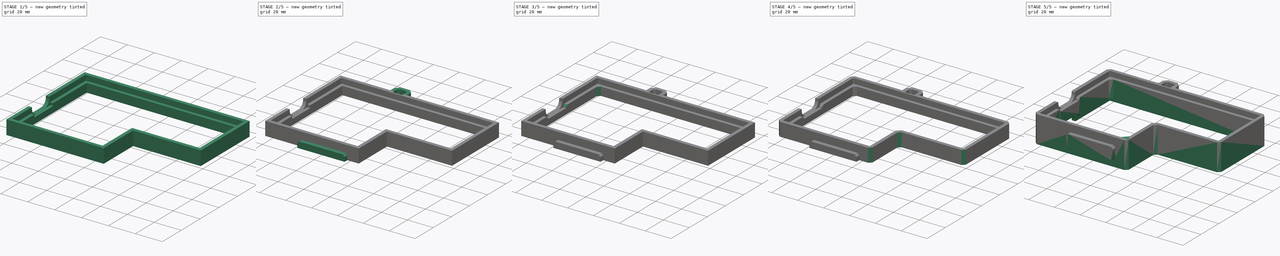
[diagram: build sequence overview — one tinted view per stage of 5, left to right]
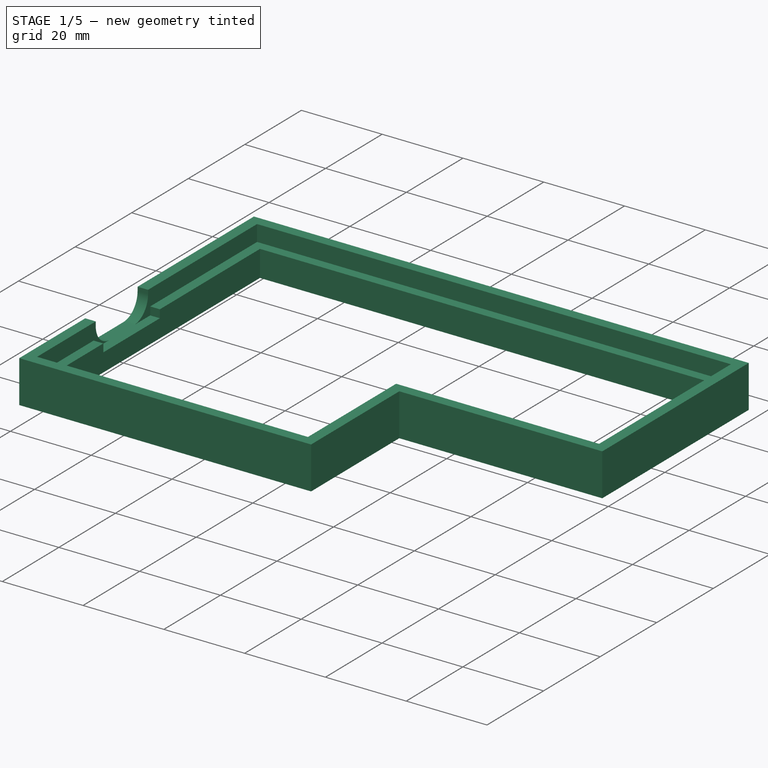
[diagram: stage 1 of 5 — iso view after this stage's code; geometry added in this stage tinted green]
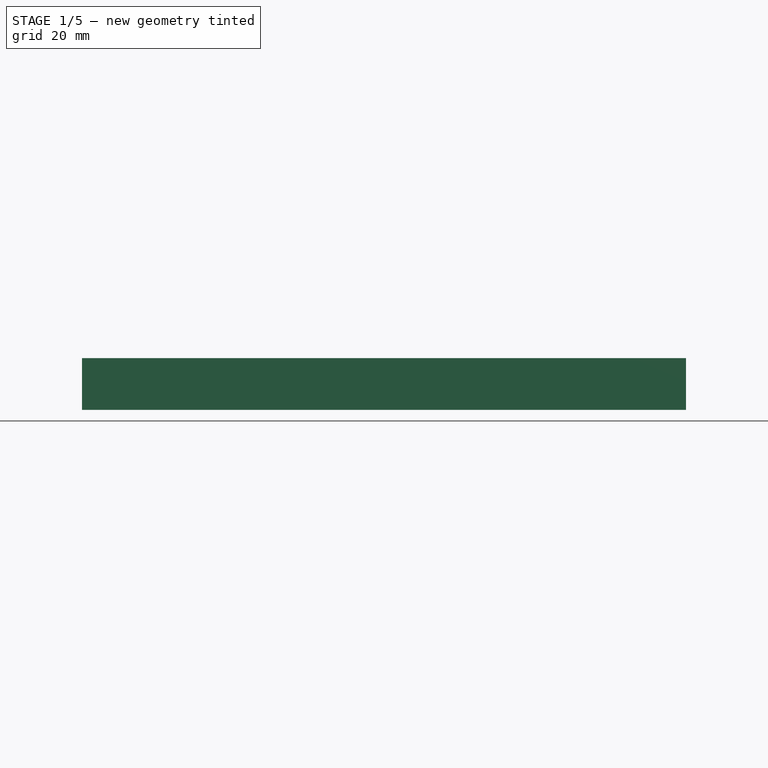
[diagram: stage 1 of 5 — front view after this stage's code; geometry added in this stage tinted green]
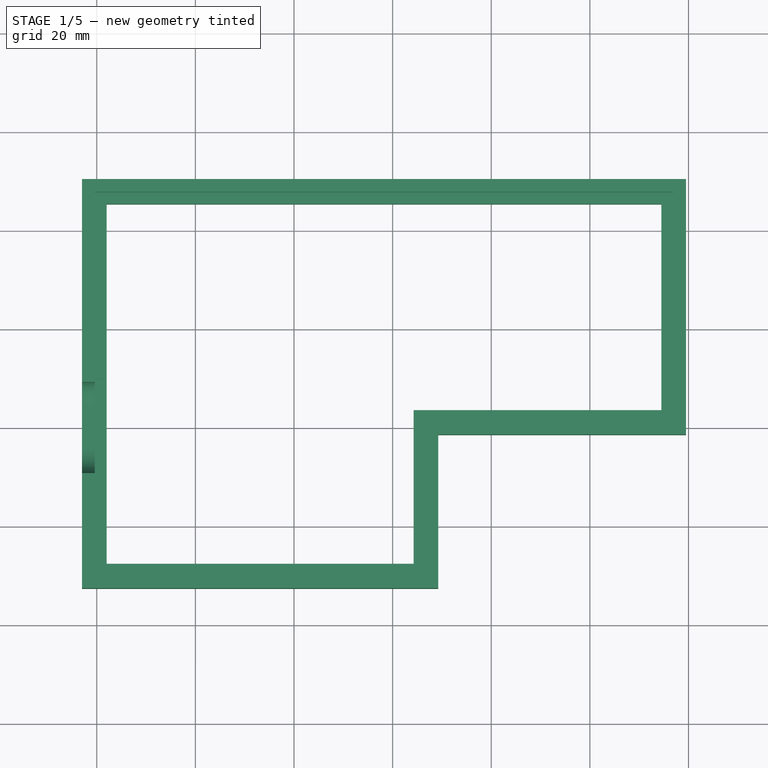
[diagram: stage 1 of 5 — top view after this stage's code; geometry added in this stage tinted green]
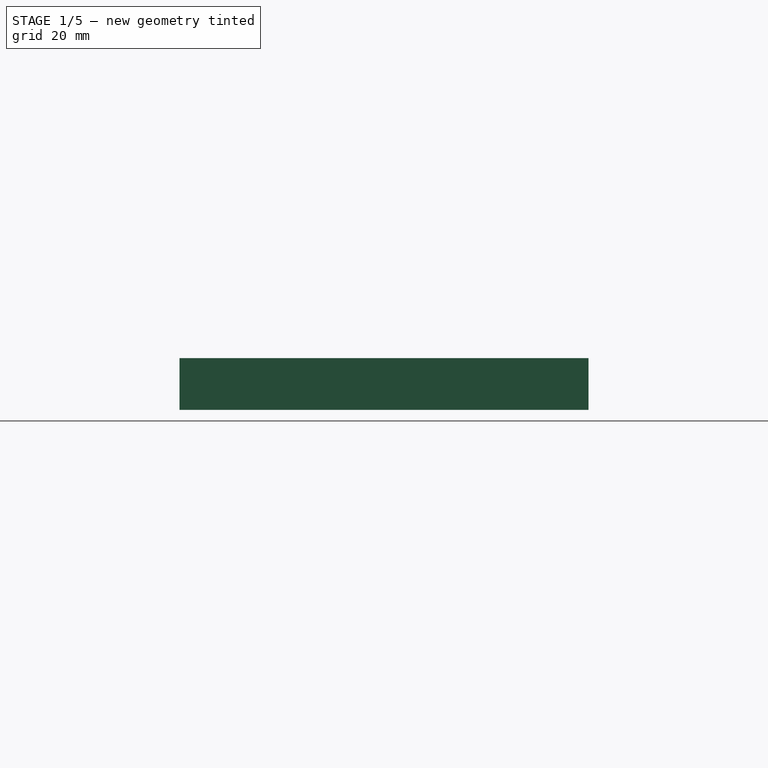
[diagram: stage 1 of 5 — right view after this stage's code; geometry added in this stage tinted green]
FCSTD DOCUMENT  (FreeCAD 1.0R39319 (Git))
Label: holder-v2
License: All rights reserved
LicenseURL: https://en.wikipedia.org/wiki/All_rights_reserved
objects: PartDesign::Chamfer×12, Sketcher::SketchObject×7, PartDesign::Pad×3, PartDesign::Pocket×3, PartDesign::Body×1, PartDesign::Mirrored×1
note: 71 computed .brp shape members not serialized (recipe doc carries the construction recipe); baked Part::Feature solids carry a one-line shape summary decoded from their .brp

FEATURE [Sketcher::SketchObject] Sketch
  ArcFitTolerance = 1e-06
  AttachmentSupport = -> [XZ_Plane]
  FullyConstrained = true
  MakeInternals = false
  MapMode = 5
  Placement = pos=(0,0,0) rot=(1,0,0;1.5708rad)
  sketch-geometry (14):
    g0: LineSegment StartX=1.9 StartY=-6.5 StartZ=0 EndX=1.9 EndY=-10.5 EndZ=0
    g1: LineSegment StartX=1.9 StartY=-10.5 StartZ=0 EndX=3.1 EndY=-10.5 EndZ=0
    g2: LineSegment StartX=3.1 StartY=-10.5 StartZ=0 EndX=3.1 EndY=10.5 EndZ=0
    g3: LineSegment StartX=3.1 StartY=10.5 StartZ=0 EndX=1.9 EndY=10.5 EndZ=0
    g4: LineSegment StartX=1.9 StartY=10.5 StartZ=0 EndX=1.9 EndY=6.5 EndZ=0
    g5: LineSegment StartX=1.9 StartY=6.5 StartZ=0 EndX=0 EndY=6.5 EndZ=0
    g6: LineSegment StartX=-3 StartY=10.5 StartZ=0 EndX=-3 EndY=-10.5 EndZ=0
    g7: LineSegment StartX=-0.4 StartY=-6.5 StartZ=0 EndX=-0.4 EndY=-10.5 EndZ=0
    g8: LineSegment StartX=-0.4 StartY=-10.5 StartZ=0 EndX=-3 EndY=-10.5 EndZ=0
    g9: LineSegment StartX=0 StartY=6.5 StartZ=0 EndX=-0.4 EndY=6.5 EndZ=0
    g10: LineSegment StartX=-0.4 StartY=6.5 StartZ=0 EndX=-0.4 EndY=10.5 EndZ=0
    g11: LineSegment StartX=-0.4 StartY=10.5 StartZ=0 EndX=-3 EndY=10.5 EndZ=0
    g12: LineSegment StartX=-0.4 StartY=-6.5 StartZ=0 EndX=0 EndY=-6.5 EndZ=0
    g13: LineSegment StartX=0 StartY=-6.5 StartZ=0 EndX=1.9 EndY=-6.5 EndZ=0
  constraints (40):
    c: Vertical(g0)
    c: Coincident(g0,g1)
    c: Horizontal(g1)
    c: Coincident(g1,g2)
    c: Vertical(g2)
    c: Coincident(g2,g3)
    c: Horizontal(g3)
    c: Coincident(g3,g4)
    c: Vertical(g4)
    c: Coincident(g4,g5)
    c: PointOnObject(g5,g-2)
    c: Horizontal(g5)
    c: Vertical(g6)
    c: DistanceX(g1,g1) = 1.2
    c: Vertical(g7)
    c: Coincident(g7,g8)
    c: Coincident(g8,g6)
    c: Coincident(g5,g9)
    c: Horizontal(g9)
    c: Coincident(g9,g10)
    c: Vertical(g10)
    c: Coincident(g10,g11)
    c: Coincident(g11,g6)
    c: Tangent(g11,g3)
    c: Tangent(g8,g1)
    c: Equal(g10,g7)
    c: Coincident(g7,g12)
    c: Horizontal(g12)
    c: Coincident(g12,g13)
    c: Coincident(g13,g0)
    c: Horizontal(g13)
    c: Distance(g12,g12) = 0.4
    c: Distance(g13,g13) = 1.9
    c: PointOnObject(g12,g-2)
    c: Distance(g-1,g5) = 6.5
    c: Distance(g13,g5) = 13
    c: Distance(g0,g0) = 4
    c: Equal(g9,g12)
    c: Equal(g5,g13)
    c: DistanceX(g8,g8) = 2.6
FEATURE [Sketcher::SketchObject] Sketch001
  ArcFitTolerance = 1e-06
  AttachmentSupport = -> [XY_Plane]
  FullyConstrained = true
  MakeInternals = false
  MapMode = 5
  expr: Constraints[33] = .Constraints.ext
  expr: Constraints[34] = .Constraints.ext
  expr: Constraints[35] = .Constraints.ext
  expr: Constraints[36] = .Constraints.ext
  expr: Constraints[37] = .Constraints.ext
  expr: Constraints[51] = .Constraints.int
  expr: Constraints[52] = .Constraints.int
  expr: Constraints[53] = .Constraints.int
  expr: Constraints[54] = .Constraints.int
  expr: Constraints[55] = .Constraints.int
  sketch-geometry (19):
    g0: LineSegment [constr] StartX=0 StartY=0 StartZ=0 EndX=0 EndY=47.38 EndZ=0
    g1: LineSegment [constr] StartX=0 StartY=47.38 StartZ=0 EndX=116.5 EndY=47.38 EndZ=0
    g2: LineSegment [constr] StartX=116.5 StartY=47.38 StartZ=0 EndX=116.5 EndY=1.59 EndZ=0
    g3: LineSegment [constr] StartX=116.5 StartY=1.59 StartZ=0 EndX=66.25 EndY=1.59 EndZ=0
    g4: LineSegment [constr] StartX=66.25 StartY=1.59 StartZ=0 EndX=66.25 EndY=-29.58 EndZ=0
    g5: LineSegment [constr] StartX=66.25 StartY=-29.58 StartZ=0 EndX=0 EndY=-29.58 EndZ=0
    g6: LineSegment [constr] StartX=0 StartY=-29.58 StartZ=0 EndX=0 EndY=0 EndZ=0
    g7: LineSegment StartX=-3 StartY=-32.58 StartZ=0 EndX=-3 EndY=50.38 EndZ=0
    g8: LineSegment StartX=-3 StartY=50.38 StartZ=0 EndX=119.5 EndY=50.38 EndZ=0
    g9: LineSegment StartX=119.5 StartY=50.38 StartZ=0 EndX=119.5 EndY=-1.41 EndZ=0
    g10: LineSegment StartX=119.5 StartY=-1.41 StartZ=0 EndX=69.25 EndY=-1.41 EndZ=0
    g11: LineSegment StartX=69.25 StartY=-1.41 StartZ=0 EndX=69.25 EndY=-32.58 EndZ=0
    g12: LineSegment StartX=69.25 StartY=-32.58 StartZ=0 EndX=-3 EndY=-32.58 EndZ=0
    g13: LineSegment StartX=2 StartY=-27.58 StartZ=0 EndX=2 EndY=45.38 EndZ=0
    g14: LineSegment StartX=2 StartY=45.38 StartZ=0 EndX=114.5 EndY=45.38 EndZ=0
    g15: LineSegment StartX=114.5 StartY=45.38 StartZ=0 EndX=114.5 EndY=3.59 EndZ=0
    g16: LineSegment StartX=114.5 StartY=3.59 StartZ=0 EndX=64.25 EndY=3.59 EndZ=0
    g17: LineSegment StartX=64.25 StartY=3.59 StartZ=0 EndX=64.25 EndY=-27.58 EndZ=0
    g18: LineSegment StartX=64.25 StartY=-27.58 StartZ=0 EndX=2 EndY=-27.58 EndZ=0
  constraints (56):
    c: Coincident(g-1,g0)
    c: PointOnObject(g0,g-2)
    c: Coincident(g0,g1)
    c: Horizontal(g1)
    c: Coincident(g1,g2)
    c: Vertical(g2)
    c: Coincident(g2,g3)
    c: Horizontal(g3)
    c: Coincident(g3,g4)
    c: Vertical(g4)
    c: Coincident(g4,g5)
    c: PointOnObject(g5,g-2)
    c: Horizontal(g5)
    c: Coincident(g5,g6)
    c: Coincident(g6,g0)
    c: Distance(g5,g1) = 76.96
    c: DistanceX(g1,g1) = 116.5
    c: DistanceY(g2,g2) = 45.79
    c: DistanceX(g5,g5) = 66.25
    c: Distance(g0,g1) = 47.38
    c: Vertical(g7)
    c: Coincident(g7,g8)
    c: Horizontal(g8)
    c: Coincident(g8,g9)
    c: Vertical(g9)
    c: Coincident(g9,g10)
    c: Horizontal(g10)
    c: Coincident(g10,g11)
    c: Vertical(g11)
    c: Coincident(g11,g12)
    c: Coincident(g12,g7)
    c: Horizontal(g12)
    c: Distance(g6,g7) = 3  'ext'
    c: Distance(g1,g8) = 3
    c: Distance(g2,g9) = 3
    c: Distance(g10,g3) = 3
    c: Distance(g11,g4) = 3
    c: Distance(g12,g5) = 3
    c: Vertical(g13)
    c: Coincident(g13,g14)
    c: Horizontal(g14)
    c: Coincident(g14,g15)
    c: Vertical(g15)
    c: Coincident(g15,g16)
    c: Horizontal(g16)
    c: Coincident(g16,g17)
    c: Vertical(g17)
    c: Coincident(g17,g18)
    c: Coincident(g18,g13)
    c: Horizontal(g18)
    c: Distance(g13,g0) = 2  'int'
    c: Distance(g14,g1) = 2
    c: Distance(g15,g2) = 2
    c: Distance(g16,g3) = 2
    c: Distance(g4,g17) = 2
    c: Distance(g5,g18) = 2
FEATURE [PartDesign::Pad] Pad
  Direction = (0,0,1)
  Length = 10.5
  Length2 = 10
  Profile = -> Sketch001
  ReferenceAxis = -> Sketch001 [N_Axis]
  Refine = true
  Suppressed = false
  Type = 0
FEATURE [Sketcher::SketchObject] Sketch002
  ArcFitTolerance = 1e-06
  AttachmentSupport = -> [Pad]
  ExternalGeometry = -> [Pad]
  FullyConstrained = true
  MakeInternals = false
  MapMode = 5
  Placement = pos=(0,0,10.5) rot=(0,0,1;0rad)
  expr: .Constraints.wallint = 0
  expr: Constraints[25] = .Constraints.wall
  expr: Constraints[26] = .Constraints.wallint
  expr: Constraints[27] = .Constraints.wall
  expr: Constraints[28] = .Constraints.wallint
  expr: Constraints[29] = .Constraints.wall
  expr: Constraints[30] = .Constraints.wallint
  expr: Constraints[31] = .Constraints.wall
  expr: Constraints[32] = .Constraints.wallint
  expr: Constraints[33] = .Constraints.wall
  expr: Constraints[34] = .Constraints.wallint
  sketch-geometry (12):
    g0: LineSegment StartX=-0.4 StartY=-29.98 StartZ=0 EndX=-0.4 EndY=47.78 EndZ=0
    g1: LineSegment StartX=-0.4 StartY=47.78 StartZ=0 EndX=116.9 EndY=47.78 EndZ=0
    g2: LineSegment StartX=116.9 StartY=47.78 StartZ=0 EndX=116.9 EndY=1.19 EndZ=0
    g3: LineSegment StartX=116.9 StartY=1.19 StartZ=0 EndX=66.65 EndY=1.19 EndZ=0
    g4: LineSegment StartX=66.65 StartY=1.19 StartZ=0 EndX=66.65 EndY=-29.98 EndZ=0
    g5: LineSegment StartX=66.65 StartY=-29.98 StartZ=0 EndX=-0.4 EndY=-29.98 EndZ=0
    g6: LineSegment StartX=2 StartY=45.38 StartZ=0 EndX=2 EndY=-27.58 EndZ=0
    g7: LineSegment StartX=2 StartY=-27.58 StartZ=0 EndX=64.25 EndY=-27.58 EndZ=0
    g8: LineSegment StartX=64.25 StartY=-27.58 StartZ=0 EndX=64.25 EndY=3.59 EndZ=0
    g9: LineSegment StartX=64.25 StartY=3.59 StartZ=0 EndX=114.5 EndY=3.59 EndZ=0
    g10: LineSegment StartX=114.5 StartY=3.59 StartZ=0 EndX=114.5 EndY=45.38 EndZ=0
    g11: LineSegment StartX=114.5 StartY=45.38 StartZ=0 EndX=2 EndY=45.38 EndZ=0
  constraints (36):
    c: Vertical(g0)
    c: Coincident(g0,g1)
    c: Horizontal(g1)
    c: Coincident(g1,g2)
    c: Vertical(g2)
    c: Coincident(g2,g3)
    c: Horizontal(g3)
    c: Coincident(g3,g4)
    c: Vertical(g4)
    c: Coincident(g4,g5)
    c: Coincident(g5,g0)
    c: Horizontal(g5)
    c: Vertical(g6)
    c: Coincident(g6,g7)
    c: Horizontal(g7)
    c: Coincident(g7,g8)
    c: Vertical(g8)
    c: Coincident(g8,g9)
    c: Horizontal(g9)
    c: Coincident(g9,g10)
    c: Vertical(g10)
    c: Coincident(g10,g11)
    c: Coincident(g11,g6)
    c: Horizontal(g11)
    c: Distance(g-3,g0) = 2.6  'wall'
    c: Distance(g1,g-4) = 2.6
    c: Distance(g-6,g11) = 0
    c: Distance(g-7,g2) = 2.6
    c: Distance(g-8,g10) = 0
    c: Distance(g-9,g3) = 2.6
    c: Distance(g9,g-10) = 0
    c: Distance(g-12,g4) = 2.6
    c: Distance(g-11,g8) = 0
    c: Distance(g-13,g5) = 2.6
    c: Distance(g7,g-14) = 0
    c: Distance(g-5,g6) = 0  'wallint'
FEATURE [PartDesign::Pocket] Pocket
  BaseFeature = -> Pad
  Direction = (0,0,-1)
  Length = 4
  Length2 = 5
  Profile = -> Sketch002
  ReferenceAxis = -> Sketch002 [N_Axis]
  Refine = true
  Suppressed = false
  Type = 0
FEATURE [PartDesign::Body] Body
  AllowCompound = false
  Group = -> [Sketch,Sketch001,Pad,Sketch002,Pocket,Sketch004,Pocket002,Sketch005,Pocket003,Sketch007,Pad001,Chamfer001,Sketch008,Pad002,Chamfer002,Chamfer,Chamfer003,Chamfer004,Chamfer005,Chamfer006,Chamfer007,Chamfer008,Chamfer009,Chamfer010,Chamfer011,Mirrored]
  Origin = -> Origin
  Tip = -> Mirrored
FEATURE [Sketcher::SketchObject] Sketch004
  ArcFitTolerance = 1e-06
  AttachmentSupport = -> [Pocket002]
  FullyConstrained = true
  MakeInternals = false
  MapMode = 5
  Placement = pos=(0,0,10.5) rot=(0,0,1;0rad)
  sketch-geometry (4):
    g0: LineSegment StartX=-0.4 StartY=10 StartZ=0 EndX=-0.4 EndY=-10 EndZ=0
    g1: LineSegment StartX=-0.4 StartY=-10 StartZ=0 EndX=4.6 EndY=-10 EndZ=0
    g2: LineSegment StartX=4.6 StartY=-10 StartZ=0 EndX=4.6 EndY=10 EndZ=0
    g3: LineSegment StartX=4.6 StartY=10 StartZ=0 EndX=-0.4 EndY=10 EndZ=0
  constraints (11):
    c: Coincident(g0,g1)
    c: Coincident(g1,g2)
    c: Coincident(g2,g3)
    c: Coincident(g3,g0)
    c: Vertical(g2)
    c: Horizontal(g1)
    c: Horizontal(g3)
    c: DistanceY(g2,g2) = 20
    c: Symmetric(g0,g0,g-1)
    c: Distance(g-2,g0) = 0.4
    c: DistanceX(g3,g3) = 5
FEATURE [Sketcher::SketchObject] Sketch005
  ArcFitTolerance = 1e-06
  AttachmentSupport = -> [Pocket002]
  FullyConstrained = true
  MakeInternals = false
  MapMode = 5
  Placement = pos=(-3,0,0) rot=(0.57735,-0.57735,-0.57735;2.0944rad)
  sketch-geometry (8):
    g0: LineSegment StartX=-9.25 StartY=10.5 StartZ=0 EndX=-9.25 EndY=9.5 EndZ=0
    g1: LineSegment StartX=-4.25 StartY=4.5 StartZ=0 EndX=4.25 EndY=4.5 EndZ=0
    g2: LineSegment StartX=9.25 StartY=9.5 StartZ=0 EndX=9.25 EndY=10.5 EndZ=0
    g3: LineSegment StartX=9.25 StartY=10.5 StartZ=0 EndX=-9.25 EndY=10.5 EndZ=0
    g4: ArcOfCircle CenterX=-4.25 CenterY=9.5 CenterZ=0 NormalX=0 NormalY=0 NormalZ=1 AngleXU=0 Radius=5 StartAngle=3.14159 EndAngle=4.71239
    g5: GeomPoint [constr] X=-9.25 Y=4.5 Z=0
    g6: ArcOfCircle CenterX=4.25 CenterY=9.5 CenterZ=0 NormalX=0 NormalY=0 NormalZ=1 AngleXU=0 Radius=5 StartAngle=4.71239 EndAngle=6.28319
    g7: GeomPoint [constr] X=9.25 Y=4.5 Z=0
  constraints (19):
    c: Coincident(g2,g3)
    c: Coincident(g3,g0)
    c: Vertical(g0)
    c: Vertical(g2)
    c: Horizontal(g1)
    c: PointOnObject(g0,g-3)
    c: Symmetric(g0,g2,g-2)
    c: DistanceY(g7,g2) = 6
    c: PointOnObject(g5,g0)
    c: PointOnObject(g5,g1)
    c: Tangent(g0,g4) = -1.5708
    c: Tangent(g1,g4) = -1.5708
    c: PointOnObject(g7,g1)
    c: PointOnObject(g7,g2)
    c: Tangent(g1,g6) = -1.5708
    c: Tangent(g2,g6) = -1.5708
    c: Equal(g4,g6)
    c: Radius(g4) = 5
    c: DistanceX(g4,g6) = 8.5
FEATURE [PartDesign::Pocket] Pocket003
  BaseFeature = -> Pocket002
  Direction = (1,0,0)
  Length = 0
  Length2 = 5
  Profile = -> Sketch005
  ReferenceAxis = -> Sketch005 [N_Axis]
  Refine = true
  Suppressed = false
  Type = 3
  UpToFace = -> Pocket002 [Face24]
FEATURE [PartDesign::Pocket] Pocket002
  BaseFeature = -> Pocket
  Direction = (0,0,-1)
  Length = 6
  Length2 = 5
  Profile = -> Sketch004
  ReferenceAxis = -> Sketch004 [N_Axis]
  Refine = true
  Suppressed = false
  Type = 0
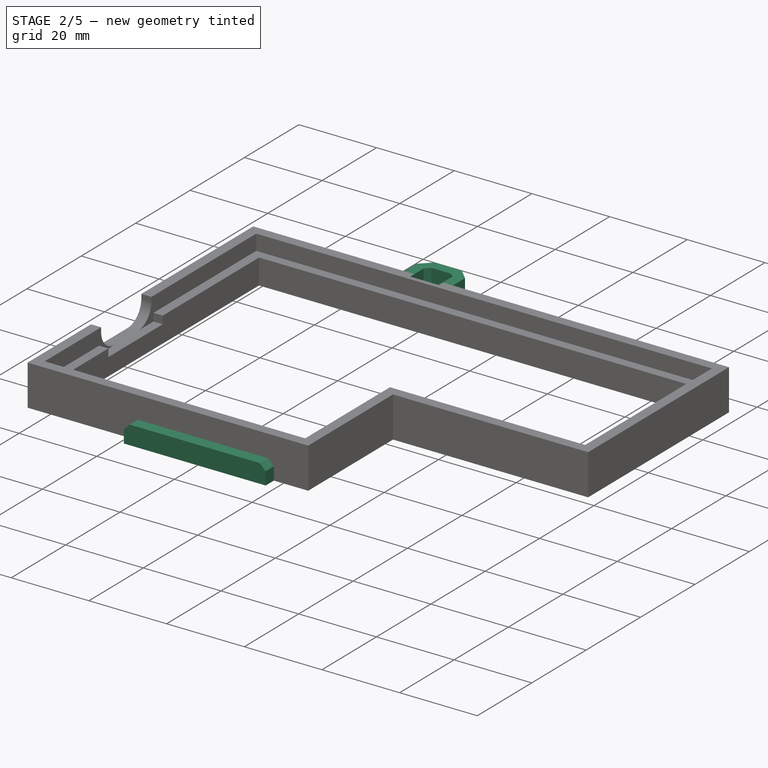
[diagram: stage 2 of 5 — iso view after this stage's code; geometry added in this stage tinted green]
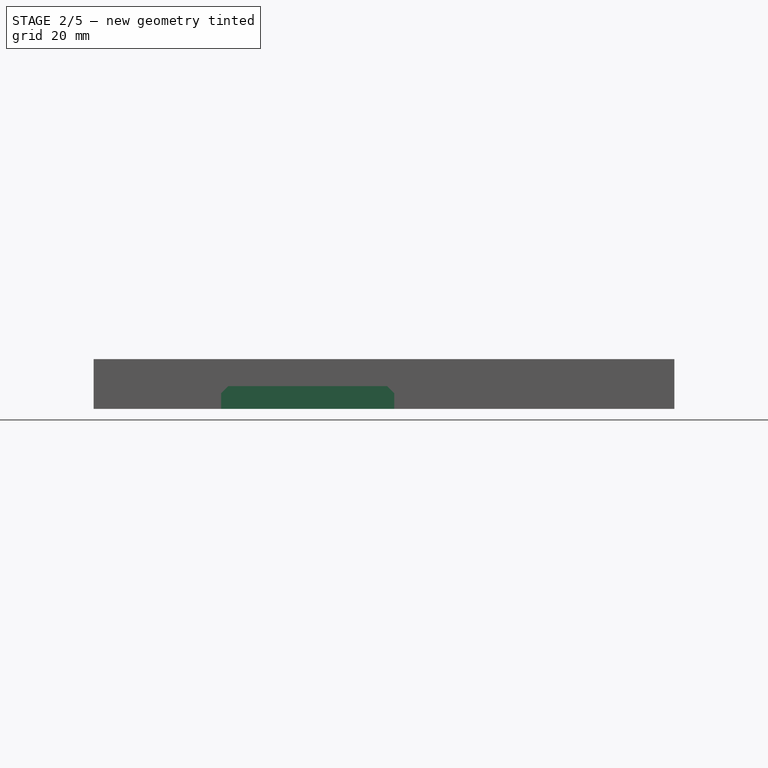
[diagram: stage 2 of 5 — front view after this stage's code; geometry added in this stage tinted green]
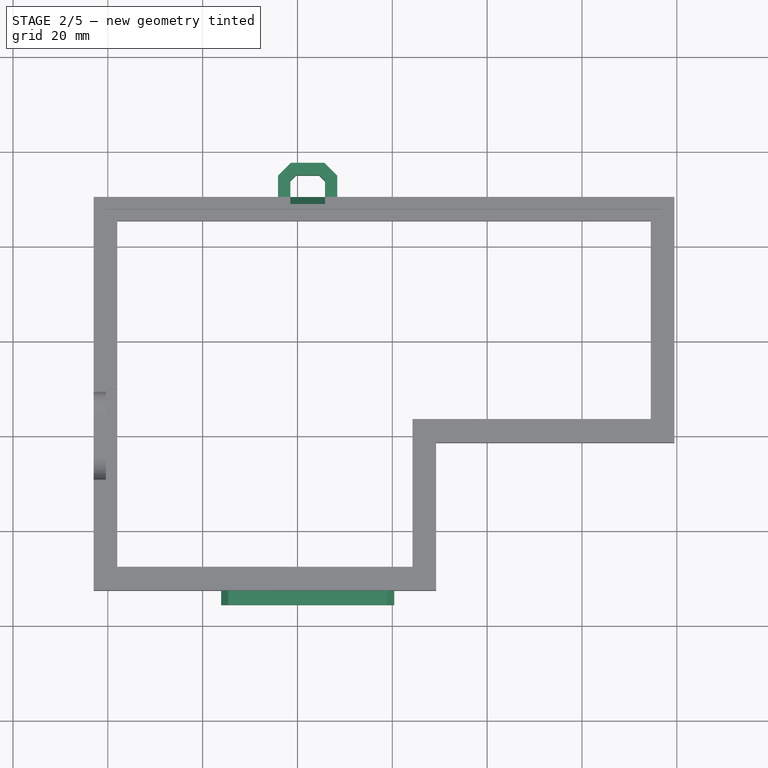
[diagram: stage 2 of 5 — top view after this stage's code; geometry added in this stage tinted green]
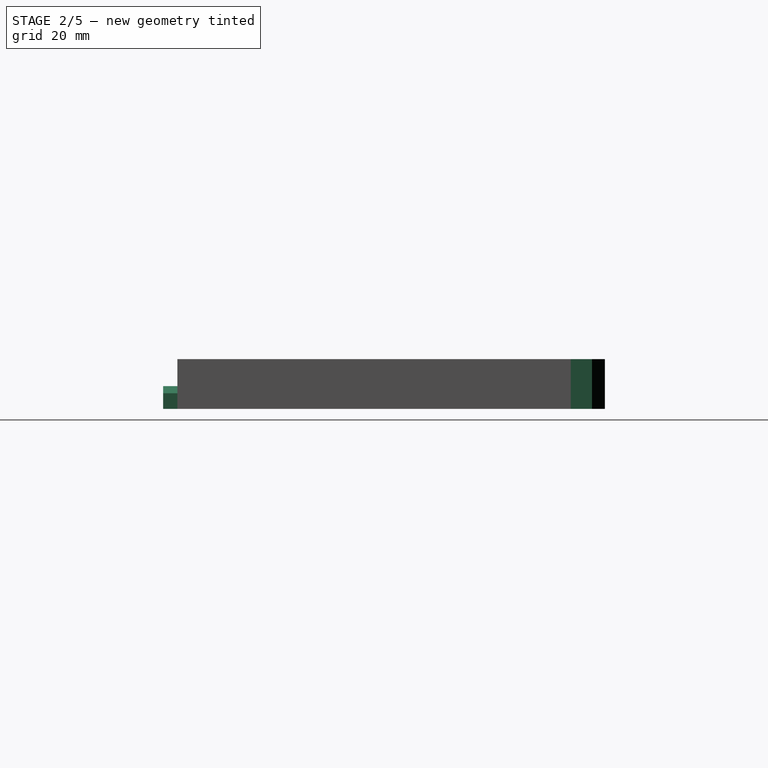
[diagram: stage 2 of 5 — right view after this stage's code; geometry added in this stage tinted green]
FEATURE [Sketcher::SketchObject] Sketch007
  ArcFitTolerance = 1e-06
  AttachmentSupport = -> [Pad001]
  FullyConstrained = true
  MakeInternals = false
  MapMode = 5
  Placement = pos=(0,-32.58,0) rot=(1,0,0;1.5708rad)
  sketch-geometry (8):
    g0: LineSegment StartX=23.9 StartY=0 StartZ=0 EndX=60.4 EndY=0 EndZ=0
    g1: LineSegment StartX=60.4 StartY=0 StartZ=0 EndX=60.4 EndY=4.8 EndZ=0
    g2: LineSegment StartX=60.4 StartY=4.8 StartZ=0 EndX=23.9 EndY=4.8 EndZ=0
    g3: LineSegment StartX=23.9 StartY=4.8 StartZ=0 EndX=23.9 EndY=0 EndZ=0
    g4: LineSegment [constr] StartX=4.4 StartY=16.75 StartZ=0 EndX=4.4 EndY=-16.75 EndZ=0
    g5: LineSegment [constr] StartX=4.4 StartY=-16.75 StartZ=0 EndX=63.4 EndY=-16.75 EndZ=0
    g6: LineSegment [constr] StartX=63.4 StartY=-16.75 StartZ=0 EndX=63.4 EndY=16.75 EndZ=0
    g7: LineSegment [constr] StartX=63.4 StartY=16.75 StartZ=0 EndX=4.4 EndY=16.75 EndZ=0
  constraints (23):
    c: Coincident(g0,g1)
    c: Coincident(g1,g2)
    c: Coincident(g2,g3)
    c: Coincident(g3,g0)
    c: Horizontal(g0)
    c: Horizontal(g2)
    c: Vertical(g1)
    c: Vertical(g3)
    c: PointOnObject(g0,g-3)
    c: DistanceX(g2,g2) = 36.5
    c: Coincident(g4,g5)
    c: Coincident(g5,g6)
    c: Coincident(g6,g7)
    c: Coincident(g7,g4)
    c: Vertical(g6)
    c: Horizontal(g5)
    c: Horizontal(g7)
    c: DistanceX(g7,g7) = 59
    c: DistanceY(g4,g4) = 33.5
    c: Symmetric(g4,g4,g-1)
    c: DistanceY(g3,g3) = 4.8
    c: Distance(g6,g1) = 3
    c: Distance(g4,g-4) = 7.5
FEATURE [PartDesign::Pad] Pad001
  BaseFeature = -> Pocket003
  Direction = (0,-1,2e-16)
  Length = 3
  Length2 = 10
  Profile = -> Sketch007
  ReferenceAxis = -> Sketch007 [N_Axis]
  Refine = true
  Suppressed = false
  Type = 0
FEATURE [PartDesign::Chamfer] Chamfer001
  Angle = 45
  Base = -> Pad001 [Edge92,Edge90]
  BaseFeature = -> Pad001
  ChamferType = 0
  FlipDirection = false
  Refine = true
  Size = 1.5
  Size2 = 1
  SupportTransform = false
  Suppressed = false
  UseAllEdges = false
FEATURE [Sketcher::SketchObject] Sketch008
  ArcFitTolerance = 1e-06
  AttachmentSupport = -> [XY_Plane]
  ExternalGeometry = -> [Chamfer001]
  FullyConstrained = false
  MakeInternals = false
  MapMode = 5
  sketch-geometry (21):
    g0: LineSegment StartX=35.9 StartY=50.38 StartZ=0 EndX=35.9 EndY=54.857 EndZ=0
    g1: LineSegment StartX=38.623 StartY=57.58 StartZ=0 EndX=45.677 EndY=57.58 EndZ=0
    g2: LineSegment StartX=44.6 StartY=54.98 StartZ=0 EndX=39.7 EndY=54.98 EndZ=0
    g3: LineSegment StartX=38.5 StartY=53.78 StartZ=0 EndX=38.5 EndY=50.38 EndZ=0
    g4: LineSegment StartX=38.5 StartY=50.38 StartZ=0 EndX=35.9 EndY=50.38 EndZ=0
    g5: LineSegment StartX=45.8 StartY=50.38 StartZ=0 EndX=45.8 EndY=53.78 EndZ=0
    g6: LineSegment StartX=48.4 StartY=54.857 StartZ=0 EndX=48.4 EndY=50.38 EndZ=0
    g7: LineSegment StartX=48.4 StartY=50.38 StartZ=0 EndX=45.8 EndY=50.38 EndZ=0
    g8: ArcOfCircle [constr] CenterX=38.623 CenterY=54.857 CenterZ=0 NormalX=0 NormalY=0 NormalZ=1 AngleXU=0 Radius=2.72304 StartAngle=1.5708 EndAngle=3.14159
    g9: GeomPoint [constr] X=35.9 Y=57.58 Z=0
    g10: LineSegment StartX=38.623 StartY=57.58 StartZ=0 EndX=35.9 EndY=54.857 EndZ=0
    g11: ArcOfCircle [constr] CenterX=39.7 CenterY=53.78 CenterZ=0 NormalX=0 NormalY=0 NormalZ=1 AngleXU=0 Radius=1.2 StartAngle=1.5708 EndAngle=3.14159
    g12: GeomPoint [constr] X=38.5 Y=54.98 Z=0
    g13: LineSegment StartX=39.7 StartY=54.98 StartZ=0 EndX=38.5 EndY=53.78 EndZ=0
    g14: ArcOfCircle [constr] CenterX=45.677 CenterY=54.857 CenterZ=0 NormalX=0 NormalY=0 NormalZ=1 AngleXU=0 Radius=2.72304 StartAngle=6e-16 EndAngle=1.5708
    g15: GeomPoint [constr] X=48.4 Y=58.28 Z=0
    g16: LineSegment StartX=48.4 StartY=54.857 StartZ=0 EndX=45.677 EndY=57.58 EndZ=0
    g17: ArcOfCircle [constr] CenterX=44.6 CenterY=53.78 CenterZ=0 NormalX=0 NormalY=0 NormalZ=1 AngleXU=0 Radius=1.2 StartAngle=1.8e-15 EndAngle=1.5708
    g18: GeomPoint [constr] X=45.8 Y=55.08 Z=0
    g19: LineSegment StartX=45.8 StartY=53.78 StartZ=0 EndX=44.6 EndY=54.98 EndZ=0
    g20: LineSegment [constr] StartX=42.2184 StartY=54.98 StartZ=0 EndX=42.2184 EndY=57.58 EndZ=0
  constraints (50):
    c: Vertical(g0)
    c: Horizontal(g1)
    c: Horizontal(g2)
    c: Coincident(g3,g4)
    c: Coincident(g4,g0)
    c: Vertical(g6)
    c: Coincident(g6,g7)
    c: Coincident(g7,g5)
    c: PointOnObject(g9,g0)
    c: PointOnObject(g9,g1)
    c: Tangent(g0,g8) = 1.5708
    c: Tangent(g1,g8) = 1.5708
    c: Coincident(g10,g0)
    c: Coincident(g10,g1)
    c: PointOnObject(g12,g3)
    c: PointOnObject(g12,g2)
    c: Tangent(g3,g11) = -1.5708
    c: Tangent(g2,g11) = -1.5708
    c: Coincident(g13,g3)
    c: Coincident(g13,g2)
    c: PointOnObject(g15,g6)
    c: Tangent(g6,g14) = 1.5708
    c: Coincident(g16,g6)
    c: PointOnObject(g18,g5)
    c: Tangent(g5,g17) = -1.5708
    c: Coincident(g19,g5)
    c: Equal(g4,g7)
    c: PointOnObject(g20,g1)
    c: Vertical(g20)
    c: Equal(g20,g4)
    c: DistanceX(g4,g4) = 2.6
    c: DistanceX(g13,g13) = 1.2
    c: Equal(g10,g16)
    c: Equal(g19,g13)
    c: Distance(g13,g10) = 2.6
    c: Vertical(g3)
    c: Vertical(g5)
    c: Distance(g-3,g0) = 12
    c: Distance(g-4,g6) = 12
    c: Distance(g5,g3) = 7.3
    c: Coincident(g1,g16)
    c: Coincident(g2,g19)
    c: Tangent(g14,g1) = 1.5708
    c: PointOnObject(g20,g2)
    c: Tangent(g17,g2) = -1.5708
    c: PointOnObject(g0,g-5)
    c: PointOnObject(g3,g-5)
    c: PointOnObject(g5,g-5)
    c: PointOnObject(g6,g-5)
    c: Distance(g-5,g2) = 4.6
FEATURE [PartDesign::Pad] Pad002
  BaseFeature = -> Chamfer001
  Direction = (0,0,1)
  Length = 10.5
  Length2 = 10
  Profile = -> Sketch008
  ReferenceAxis = -> Sketch008 [N_Axis]
  Refine = true
  Suppressed = false
  Type = 0
FEATURE [PartDesign::Chamfer] Chamfer002
  Angle = 45
  Base = -> Pad002 [Edge128]
  BaseFeature = -> Pad002
  ChamferType = 0
  FlipDirection = false
  Refine = true
  Size = 1.5
  Size2 = 1
  SupportTransform = false
  Suppressed = false
  UseAllEdges = false
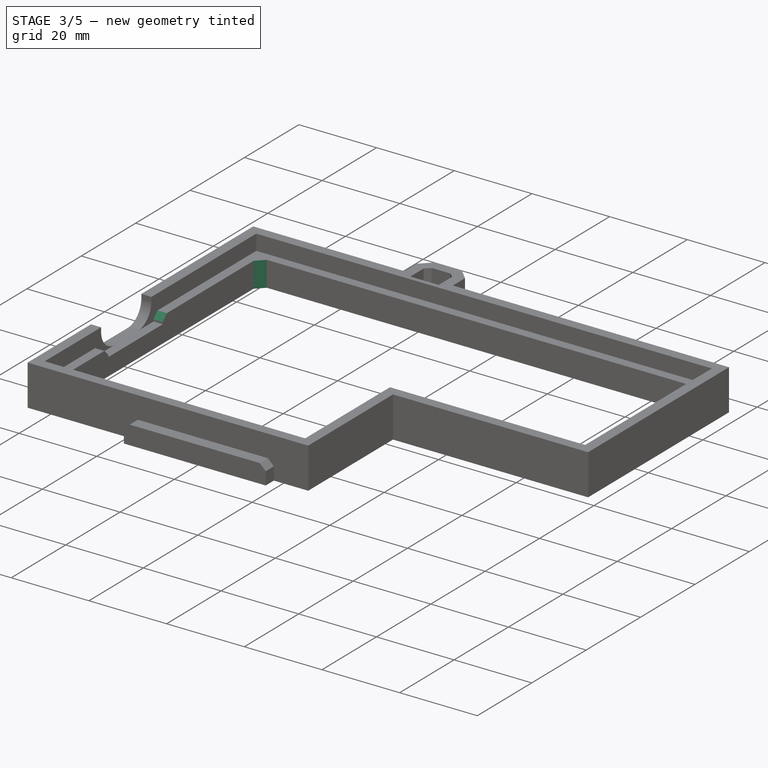
[diagram: stage 3 of 5 — iso view after this stage's code; geometry added in this stage tinted green]
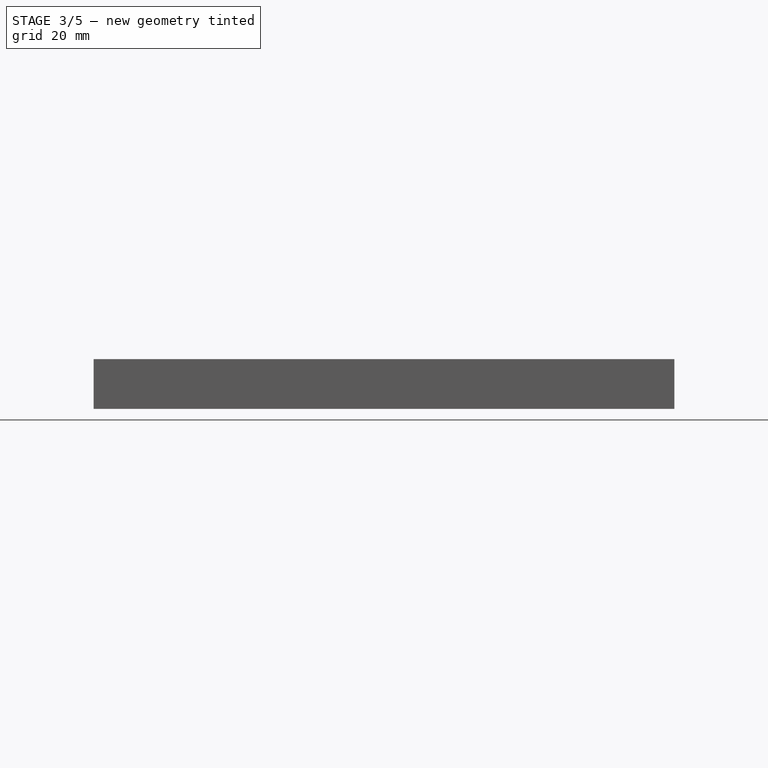
[diagram: stage 3 of 5 — front view after this stage's code; geometry added in this stage tinted green]
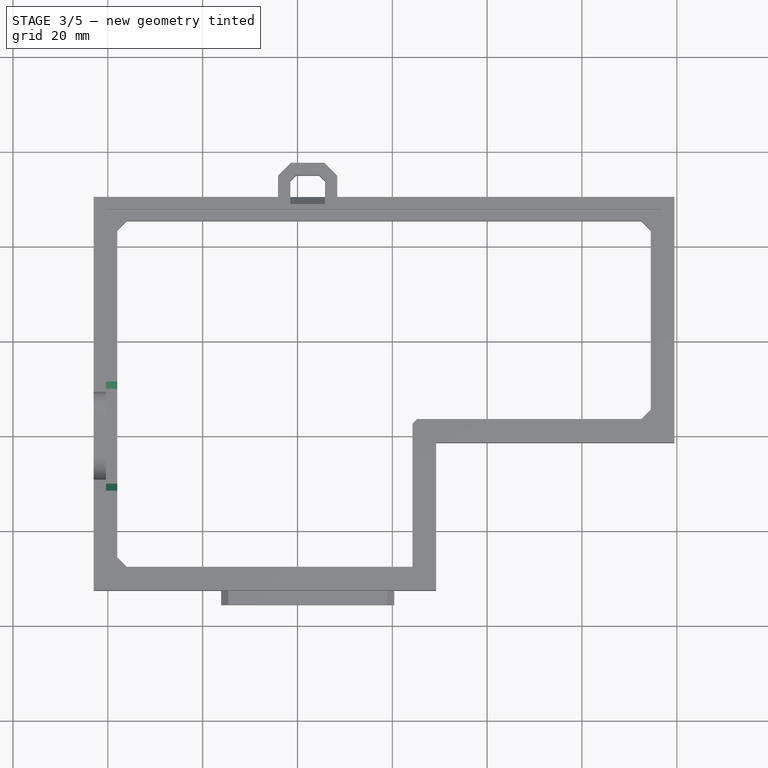
[diagram: stage 3 of 5 — top view after this stage's code; geometry added in this stage tinted green]
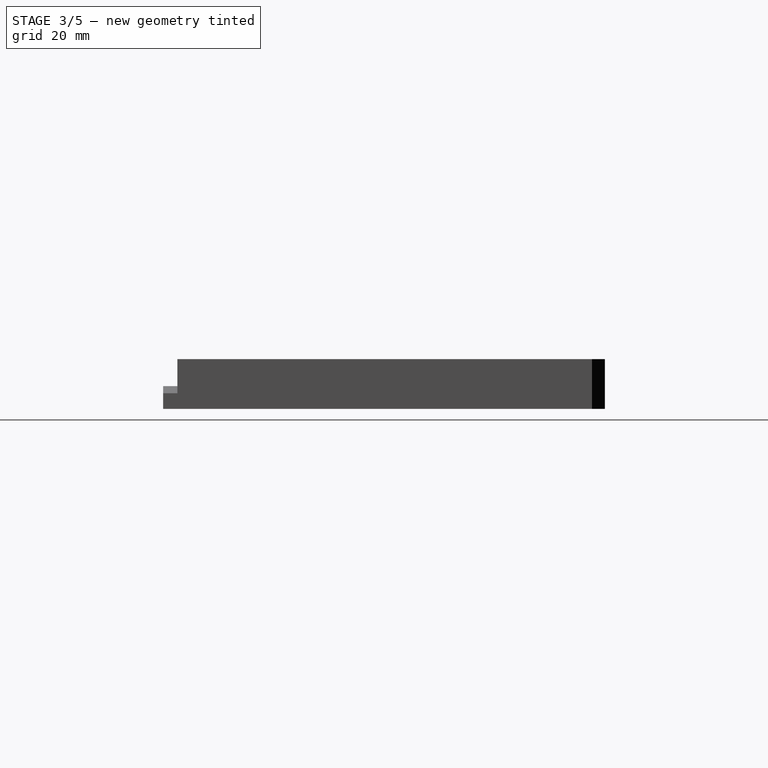
[diagram: stage 3 of 5 — right view after this stage's code; geometry added in this stage tinted green]
FEATURE [PartDesign::Chamfer] Chamfer
  Angle = 45
  Base = -> Chamfer002 [Edge143,Edge142]
  BaseFeature = -> Chamfer002
  ChamferType = 0
  FlipDirection = false
  Refine = true
  Size = 1.5
  Size2 = 1
  SupportTransform = false
  Suppressed = false
  UseAllEdges = false
FEATURE [PartDesign::Chamfer] Chamfer003
  Angle = 45
  Base = -> Chamfer [Edge3,Edge28,Edge80,Edge7]
  BaseFeature = -> Chamfer
  ChamferType = 0
  FlipDirection = false
  Refine = true
  Size = 2
  Size2 = 1
  SupportTransform = false
  Suppressed = false
  UseAllEdges = false
FEATURE [PartDesign::Chamfer] Chamfer004
  Angle = 45
  Base = -> Chamfer003 [Edge80]
  BaseFeature = -> Chamfer003
  ChamferType = 0
  FlipDirection = false
  Refine = true
  Size = 1
  Size2 = 1
  SupportTransform = false
  Suppressed = false
  UseAllEdges = false
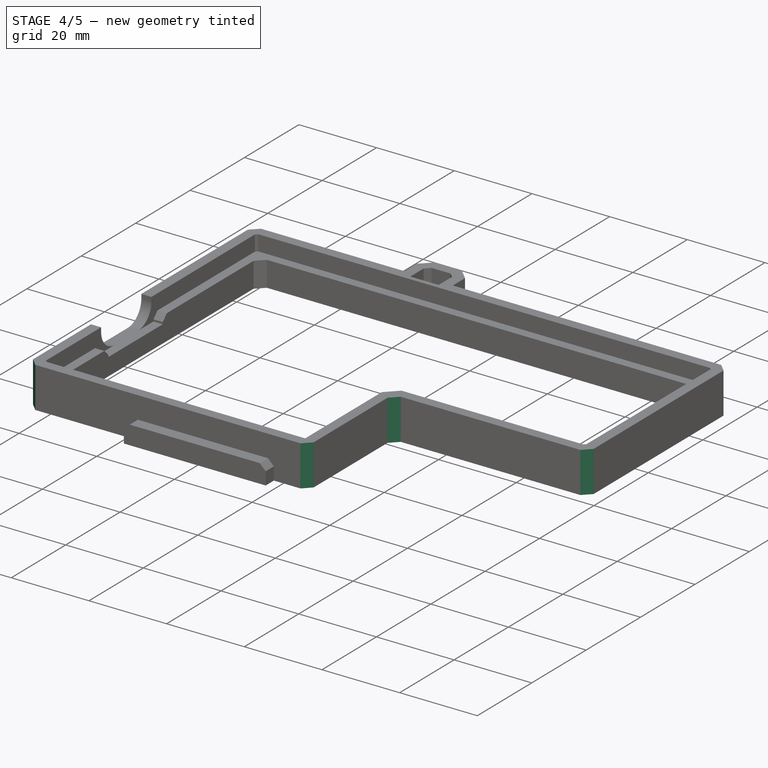
[diagram: stage 4 of 5 — iso view after this stage's code; geometry added in this stage tinted green]
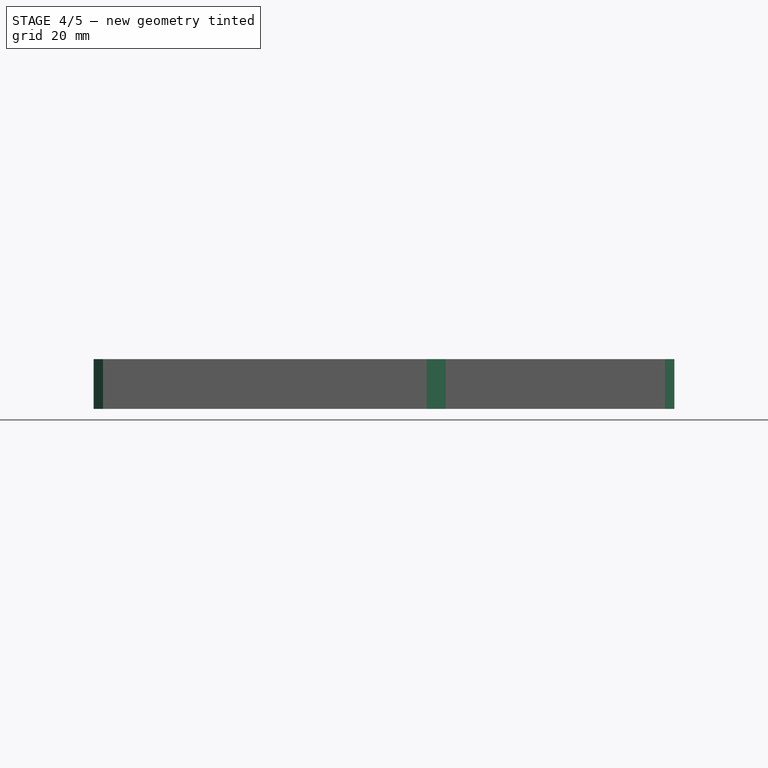
[diagram: stage 4 of 5 — front view after this stage's code; geometry added in this stage tinted green]
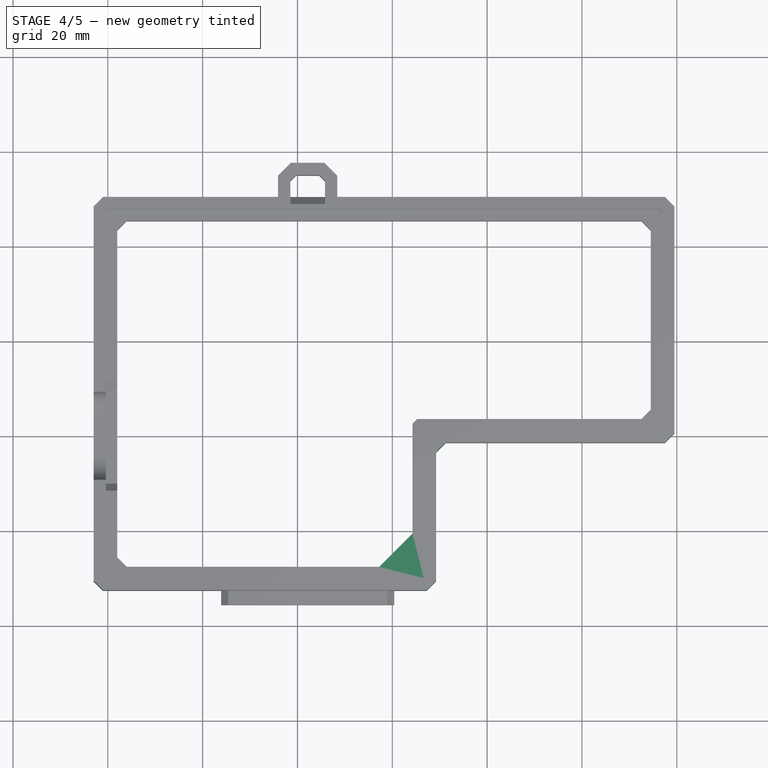
[diagram: stage 4 of 5 — top view after this stage's code; geometry added in this stage tinted green]
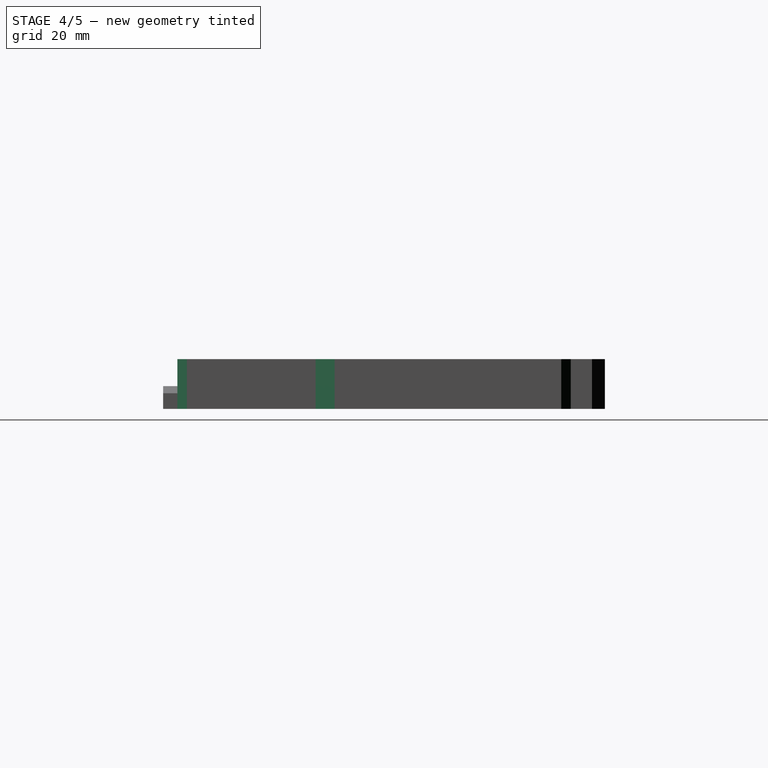
[diagram: stage 4 of 5 — right view after this stage's code; geometry added in this stage tinted green]
FEATURE [PartDesign::Chamfer] Chamfer005
  Angle = 45
  Base = -> Chamfer004 [Edge24]
  BaseFeature = -> Chamfer004
  ChamferType = 0
  FlipDirection = false
  Refine = true
  Size = 7
  Size2 = 1
  SupportTransform = false
  Suppressed = false
  UseAllEdges = false
FEATURE [PartDesign::Chamfer] Chamfer006
  Angle = 45
  Base = -> Chamfer005 [Edge62]
  BaseFeature = -> Chamfer005
  ChamferType = 0
  FlipDirection = false
  Refine = true
  Size = 3
  Size2 = 1
  SupportTransform = false
  Suppressed = false
  UseAllEdges = false
FEATURE [PartDesign::Chamfer] Chamfer007
  Angle = 45
  Base = -> Chamfer006 [Edge137,Edge142,Edge148,Edge150,Edge136,Edge146]
  BaseFeature = -> Chamfer006
  ChamferType = 0
  FlipDirection = false
  Refine = true
  Size = 2
  Size2 = 1
  SupportTransform = false
  Suppressed = false
  UseAllEdges = false
FEATURE [PartDesign::Chamfer] Chamfer008
  Angle = 45
  Base = -> Chamfer007 [Edge64,Edge60,Edge54,Edge80]
  BaseFeature = -> Chamfer007
  ChamferType = 0
  FlipDirection = false
  Refine = true
  Size = 0.5
  Size2 = 1
  SupportTransform = false
  Suppressed = false
  UseAllEdges = false
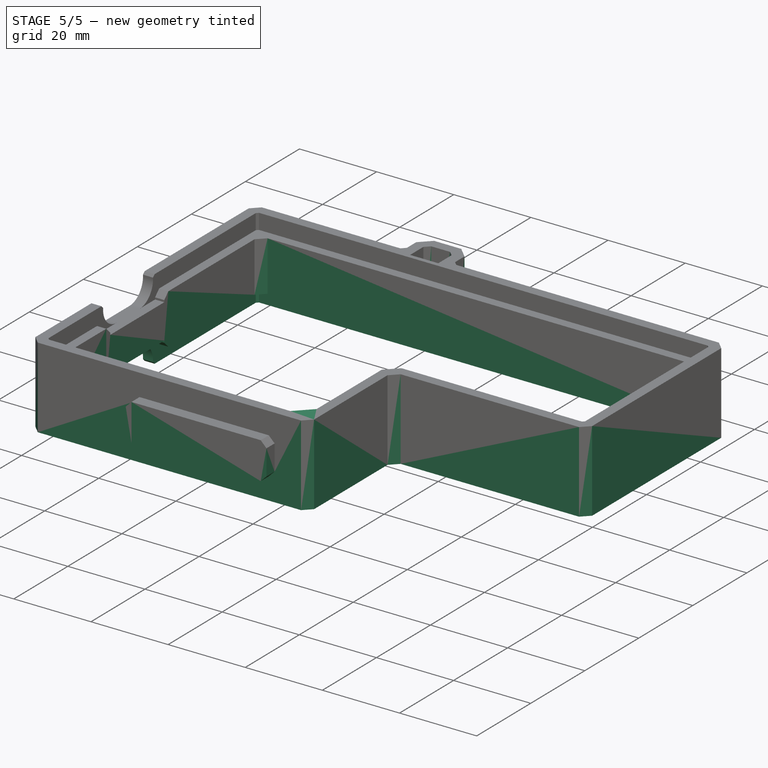
[diagram: stage 5 of 5 — iso view after this stage's code; geometry added in this stage tinted green]
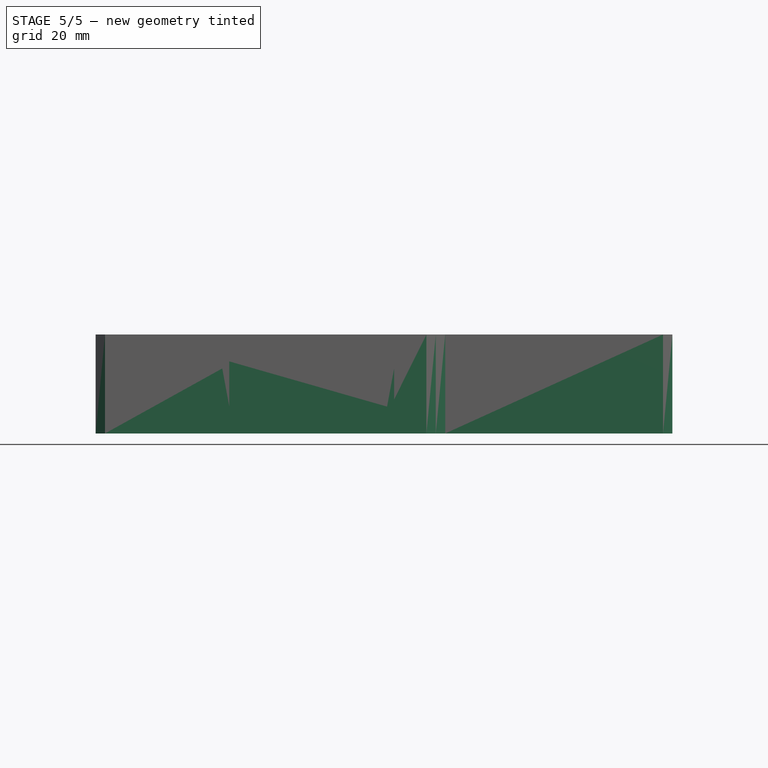
[diagram: stage 5 of 5 — front view after this stage's code; geometry added in this stage tinted green]
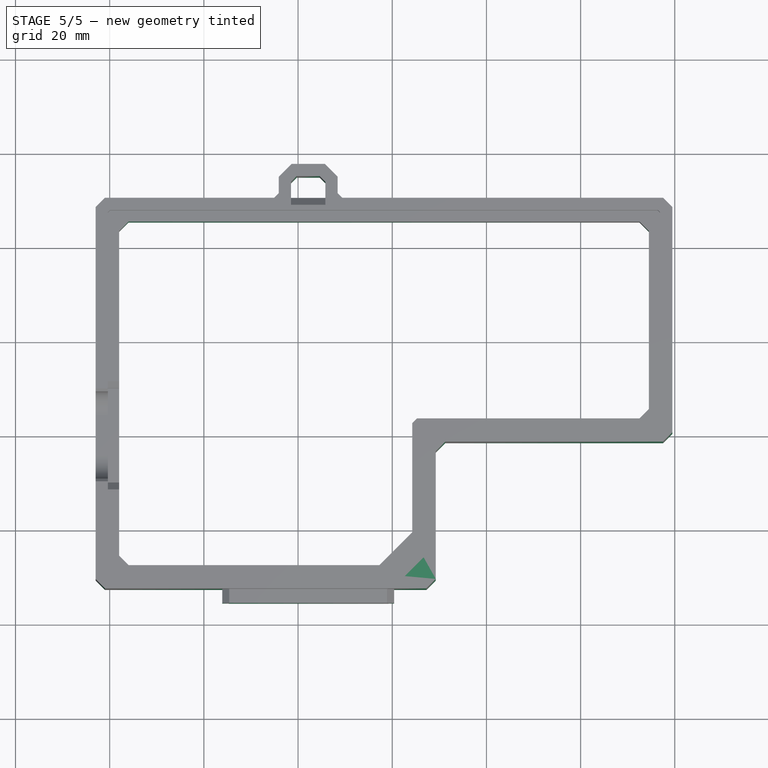
[diagram: stage 5 of 5 — top view after this stage's code; geometry added in this stage tinted green]
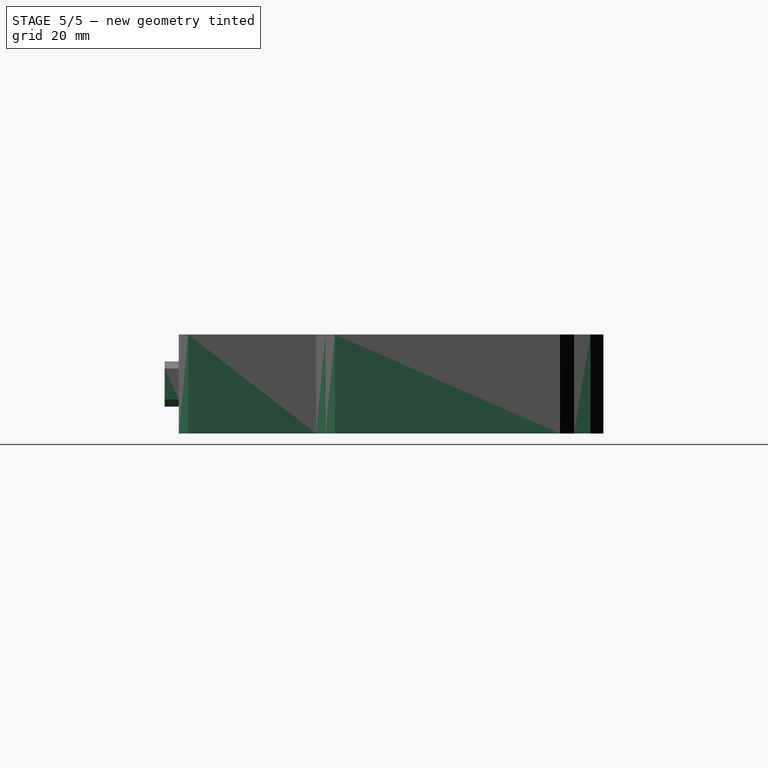
[diagram: stage 5 of 5 — right view after this stage's code; geometry added in this stage tinted green]
FEATURE [PartDesign::Chamfer] Chamfer009
  Angle = 45
  Base = -> Chamfer008 [Edge82]
  BaseFeature = -> Chamfer008
  ChamferType = 0
  FlipDirection = false
  Refine = true
  Size = 4
  Size2 = 1
  SupportTransform = false
  Suppressed = false
  UseAllEdges = false
FEATURE [PartDesign::Chamfer] Chamfer010
  Angle = 45
  Base = -> Chamfer009 [Edge109,Edge123]
  BaseFeature = -> Chamfer009
  ChamferType = 0
  FlipDirection = false
  Refine = true
  Size = 1
  Size2 = 1
  SupportTransform = false
  Suppressed = false
  UseAllEdges = false
FEATURE [PartDesign::Chamfer] Chamfer011
  Angle = 45
  Base = -> Chamfer010 [Edge7,Edge35]
  BaseFeature = -> Chamfer010
  ChamferType = 0
  FlipDirection = false
  Refine = true
  Size = 0.6
  Size2 = 1
  SupportTransform = false
  Suppressed = false
  UseAllEdges = false
FEATURE [PartDesign::Mirrored] Mirrored
  BaseFeature = -> Chamfer011
  MirrorPlane = -> XY_Plane
  Refine = true
  Suppressed = false
  TransformMode = 1
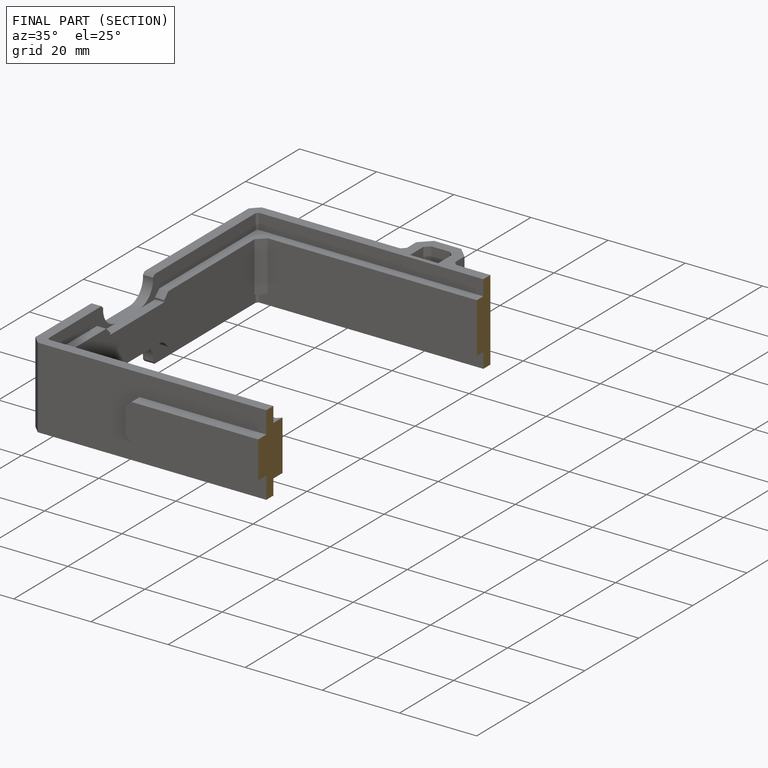
[diagram: finished part — half-section view (interior)]
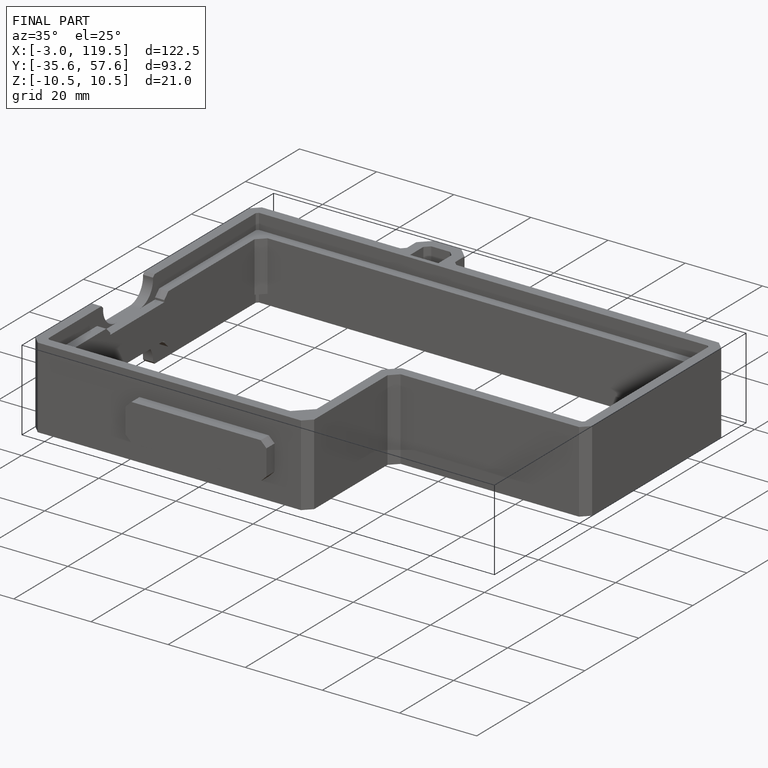
[diagram: finished part — iso view with bounding-box wireframe]
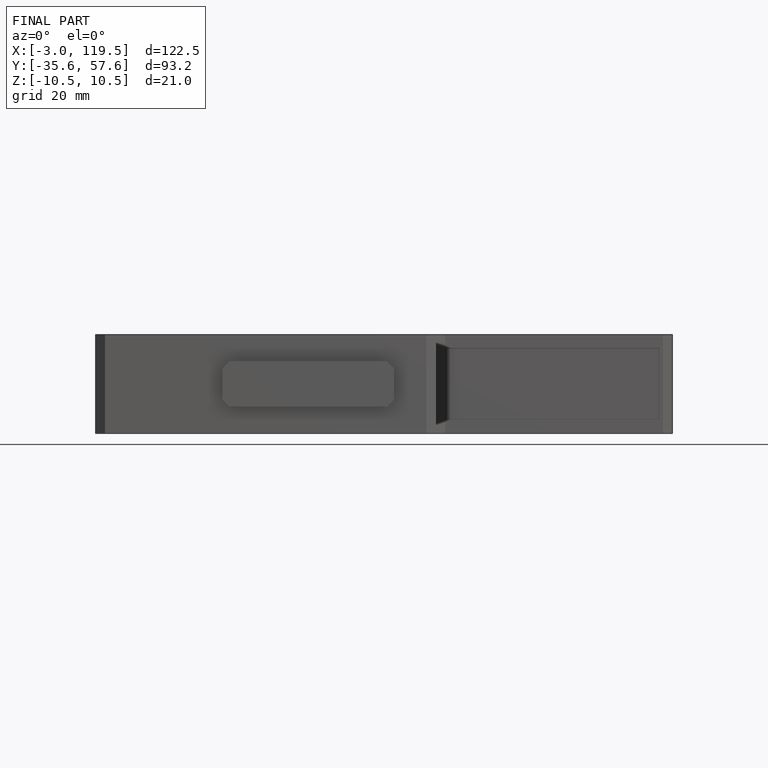
[diagram: finished part — front view with bounding-box wireframe]
